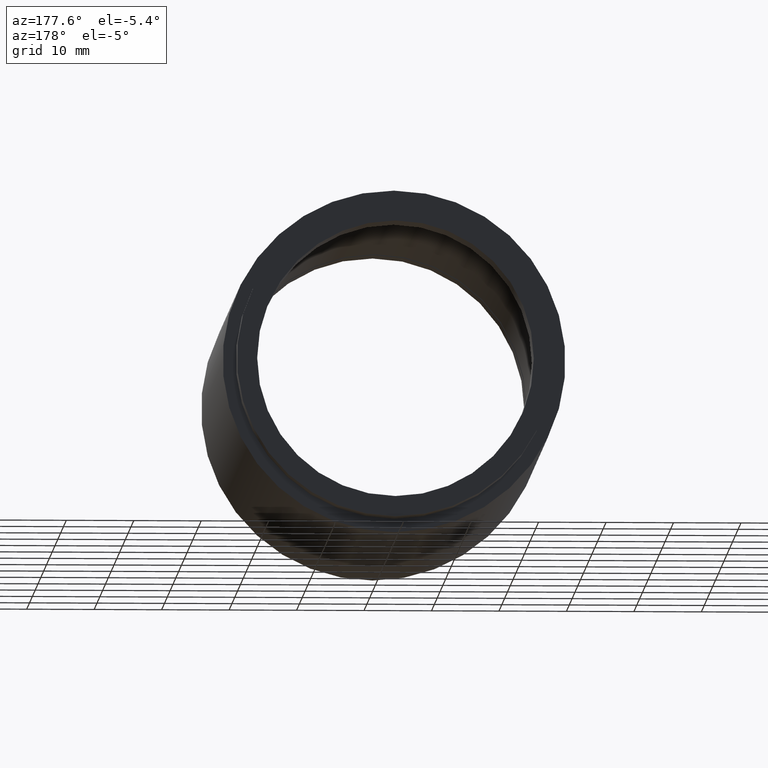
[diagram: clean part render]
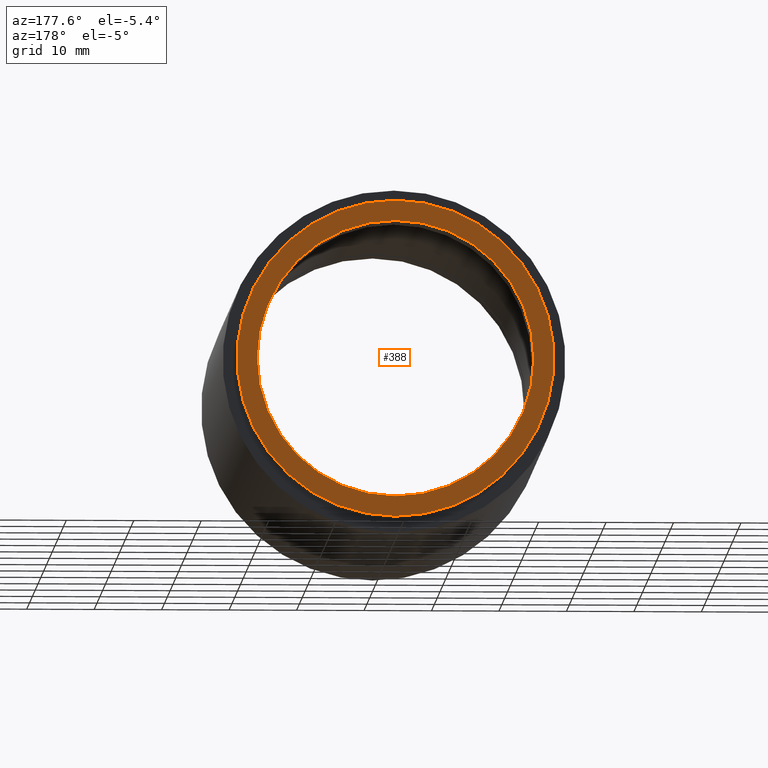
[diagram: same view with one face highlighted and labeled with its STEP entity id]
A machine part, auxiliary view. The second image highlights one B-rep face of the part: STEP entity #388.
In plain terms, the highlighted planar face has unit normal (0, -1, 0).
Its self-contained STEP definition (entity closure, byte-faithful):
#1 = DIRECTION ( 'NONE',  ( 0.0000000000000000000, 0.0000000000000000000, 1.000000000000000000 ) ) ;
#2 = EDGE_CURVE ( 'NONE', #404, #81, #217, .T. ) ;
#8 = AXIS2_PLACEMENT_3D ( 'NONE', #257, #319, #1 ) ;
#38 = CARTESIAN_POINT ( 'NONE',  ( 20.50000000000001100, 81.19999999999998900, 0.0000000000000000000 ) ) ;
#55 = FACE_BOUND ( 'NONE', #170, .T. ) ;
#71 = CARTESIAN_POINT ( 'NONE',  ( 2.510525938252075300E-015, 81.19999999999998900, -20.50000000000001100 ) ) ;
#81 = VERTEX_POINT ( 'NONE', #199 ) ;
#120 = ORIENTED_EDGE ( 'NONE', *, *, #599, .T. ) ;
#137 = DIRECTION ( 'NONE',  ( 0.0000000000000000000, 0.0000000000000000000, 1.000000000000000000 ) ) ;
#160 = CARTESIAN_POINT ( 'NONE',  ( 0.0000000000000000000, 81.19999999999998900, 0.0000000000000000000 ) ) ;
#161 = CARTESIAN_POINT ( 'NONE',  ( 0.0000000000000000000, 81.19999999999998900, 20.50000000000001100 ) ) ;
#165 = CIRCLE ( 'NONE', #636, 20.50000000000001100 ) ;
#170 = EDGE_LOOP ( 'NONE', ( #381, #424 ) ) ;
#190 = AXIS2_PLACEMENT_3D ( 'NONE', #38, #725, #540 ) ;
#199 = CARTESIAN_POINT ( 'NONE',  ( 0.0000000000000000000, 81.19999999999998900, 23.49999999999986500 ) ) ;
#217 = CIRCLE ( 'NONE', #494, 23.49999999999986500 ) ;
#221 = CIRCLE ( 'NONE', #631, 23.49999999999986500 ) ;
#229 = CARTESIAN_POINT ( 'NONE',  ( 2.877919977996263800E-015, 81.19999999999998900, -23.49999999999986500 ) ) ;
#252 = DIRECTION ( 'NONE',  ( -0.0000000000000000000, 1.000000000000000000, -0.0000000000000000000 ) ) ;
#253 = VERTEX_POINT ( 'NONE', #161 ) ;
#257 = CARTESIAN_POINT ( 'NONE',  ( 0.0000000000000000000, 81.19999999999998900, 0.0000000000000000000 ) ) ;
#277 = DIRECTION ( 'NONE',  ( -0.0000000000000000000, 1.000000000000000000, -0.0000000000000000000 ) ) ;
#299 = EDGE_LOOP ( 'NONE', ( #120, #651 ) ) ;
#319 = DIRECTION ( 'NONE',  ( -0.0000000000000000000, 1.000000000000000000, -0.0000000000000000000 ) ) ;
#369 = FACE_OUTER_BOUND ( 'NONE', #299, .T. ) ;
#381 = ORIENTED_EDGE ( 'NONE', *, *, #737, .F. ) ;
#388 = ADVANCED_FACE ( 'NONE', ( #55, #369 ), #793, .F. ) ;
#404 = VERTEX_POINT ( 'NONE', #229 ) ;
#424 = ORIENTED_EDGE ( 'NONE', *, *, #525, .F. ) ;
#494 = AXIS2_PLACEMENT_3D ( 'NONE', #812, #551, #137 ) ;
#525 = EDGE_CURVE ( 'NONE', #688, #253, #562, .T. ) ;
#540 = DIRECTION ( 'NONE',  ( 0.0000000000000000000, -0.0000000000000000000, -1.000000000000000000 ) ) ;
#551 = DIRECTION ( 'NONE',  ( -0.0000000000000000000, 1.000000000000000000, -0.0000000000000000000 ) ) ;
#552 = CARTESIAN_POINT ( 'NONE',  ( 0.0000000000000000000, 81.19999999999998900, 0.0000000000000000000 ) ) ;
#562 = CIRCLE ( 'NONE', #8, 20.50000000000001100 ) ;
#599 = EDGE_CURVE ( 'NONE', #81, #404, #221, .T. ) ;
#631 = AXIS2_PLACEMENT_3D ( 'NONE', #552, #252, #750 ) ;
#636 = AXIS2_PLACEMENT_3D ( 'NONE', #160, #277, #762 ) ;
#651 = ORIENTED_EDGE ( 'NONE', *, *, #2, .T. ) ;
#688 = VERTEX_POINT ( 'NONE', #71 ) ;
#725 = DIRECTION ( 'NONE',  ( 0.0000000000000000000, -1.000000000000000000, 0.0000000000000000000 ) ) ;
#737 = EDGE_CURVE ( 'NONE', #253, #688, #165, .T. ) ;
#750 = DIRECTION ( 'NONE',  ( 0.0000000000000000000, 0.0000000000000000000, 1.000000000000000000 ) ) ;
#762 = DIRECTION ( 'NONE',  ( 0.0000000000000000000, 0.0000000000000000000, 1.000000000000000000 ) ) ;
#793 = PLANE ( 'NONE',  #190 ) ;
#812 = CARTESIAN_POINT ( 'NONE',  ( 0.0000000000000000000, 81.19999999999998900, 0.0000000000000000000 ) ) ;